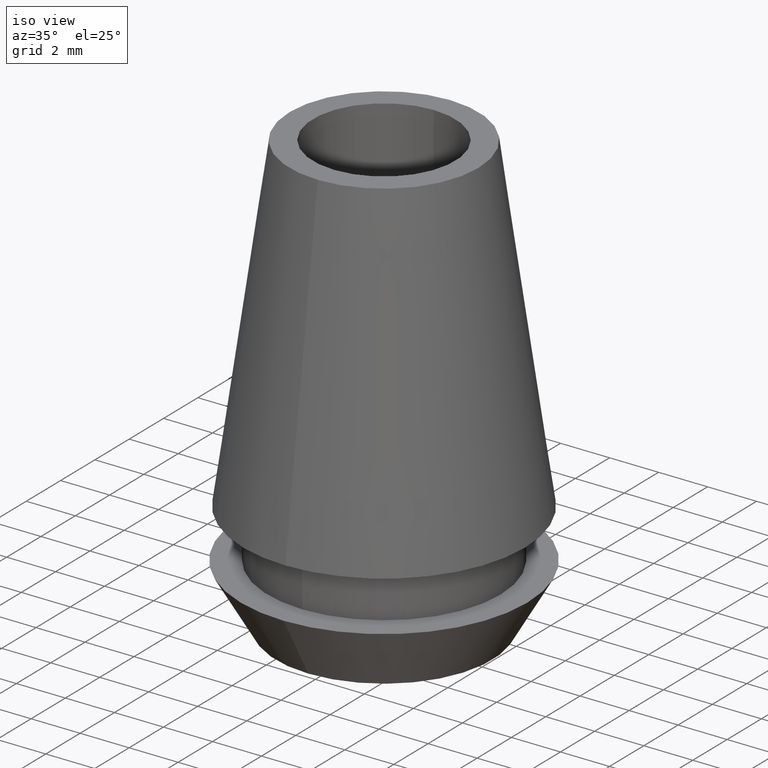
[diagram: clean part render]
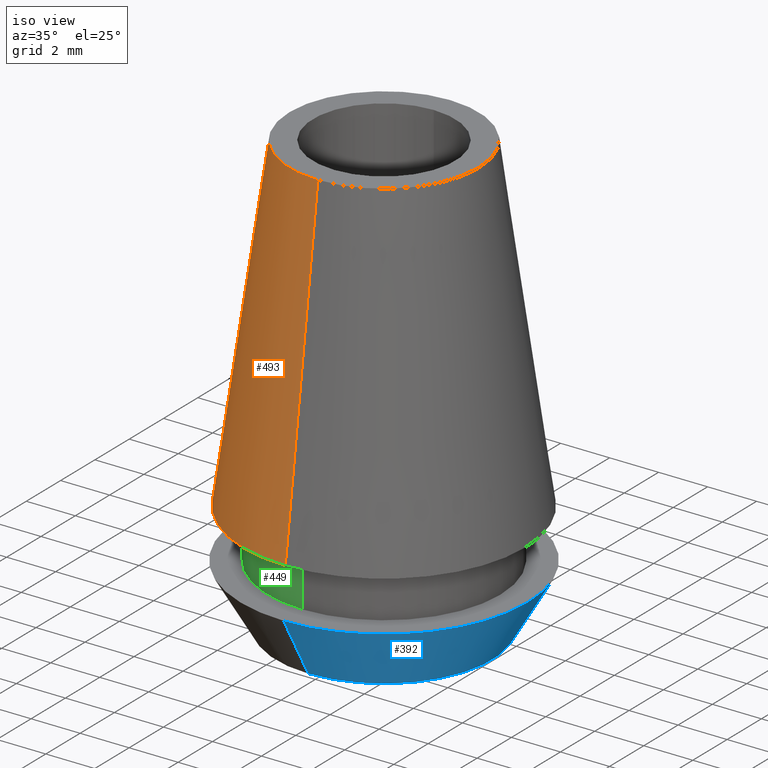
[diagram: same view with three faces highlighted in distinct colors, each labeled with its STEP entity id]
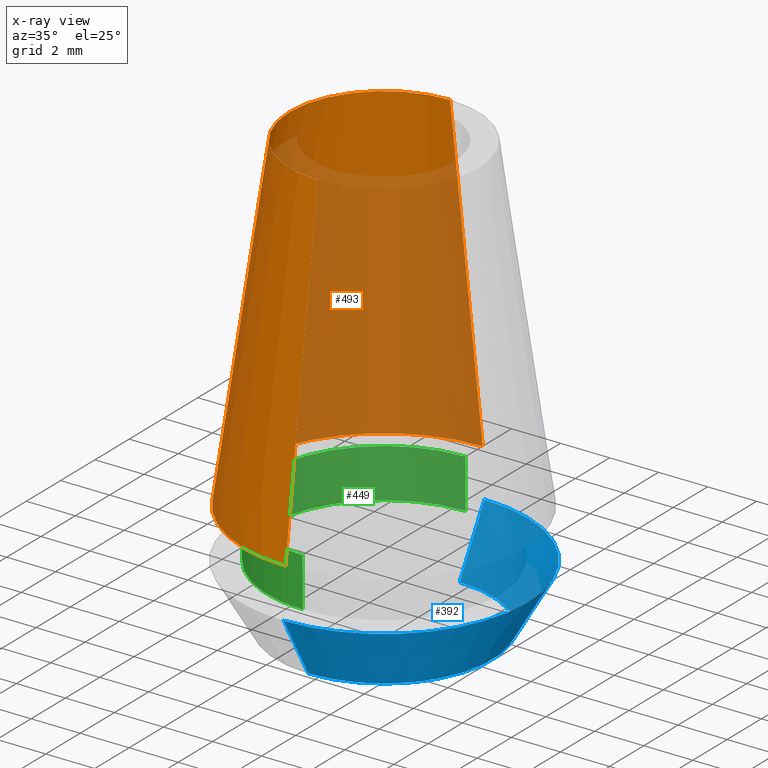
[diagram: x-ray of the same camera — body ghosted, the three highlighted faces saturated]
A machine part, iso view with three faces highlighted in distinct colors.
The next image is the same camera in x-ray (body ghosted, the three faces saturated) — at least one of them is partly hidden behind the body in this view.
Their STEP definitions:

[orange] entity #493 — the highlighted conical surface has half-angle 8 deg.
#178=CARTESIAN_POINT('',(0.E0,1.285266815705E-14,-1.35E1));
#179=DIRECTION('',(0.E0,0.E0,1.E0));
#180=DIRECTION('',(0.E0,1.E0,0.E0));
#181=AXIS2_PLACEMENT_3D('',#178,#179,#180);
#202=DIRECTION('',(0.E0,1.391731009601E-1,-9.902680687416E-1));
#203=VECTOR('',#202,1.363267222900E1);
#204=CARTESIAN_POINT('',(0.E0,3.855672233982E0,0.E0));
#205=LINE('',#204,#203);
#209=DIRECTION('',(0.E0,-1.391731009601E-1,-9.902680687416E-1));
#210=VECTOR('',#209,1.363267222900E1);
#211=CARTESIAN_POINT('',(0.E0,-3.855672233982E0,0.E0));
#212=LINE('',#211,#210);
#216=CARTESIAN_POINT('',(0.E0,1.285266815705E-14,2.486899575160E-14));
#217=DIRECTION('',(0.E0,0.E0,-1.E0));
#218=DIRECTION('',(0.E0,-1.E0,0.E0));
#219=AXIS2_PLACEMENT_3D('',#216,#217,#218);
#280=CARTESIAN_POINT('',(0.E0,-5.752973502464E0,-1.35E1));
#281=CARTESIAN_POINT('',(0.E0,5.752973502464E0,-1.35E1));
#282=VERTEX_POINT('',#280);
#283=VERTEX_POINT('',#281);
#284=CARTESIAN_POINT('',(0.E0,3.855672233982E0,0.E0));
#285=VERTEX_POINT('',#284);
#286=CARTESIAN_POINT('',(0.E0,-3.855672233982E0,0.E0));
#287=VERTEX_POINT('',#286);
#481=CARTESIAN_POINT('',(0.E0,1.285266815705E-14,-6.75E0));
#482=DIRECTION('',(0.E0,0.E0,-1.E0));
#483=DIRECTION('',(0.E0,-1.E0,0.E0));
#484=AXIS2_PLACEMENT_3D('',#481,#482,#483);
#485=CONICAL_SURFACE('',#484,4.804322868223E0,8.E0);
#486=ORIENTED_EDGE('',*,*,#471,.F.);
#488=ORIENTED_EDGE('',*,*,#487,.F.);
#489=ORIENTED_EDGE('',*,*,#474,.T.);
#490=ORIENTED_EDGE('',*,*,#457,.F.);
#491=EDGE_LOOP('',(#486,#488,#489,#490));
#492=FACE_OUTER_BOUND('',#491,.F.);
#182=CIRCLE('',#181,5.752973502464E0);
#220=CIRCLE('',#219,3.855672233982E0);
#457=EDGE_CURVE('',#283,#282,#182,.T.);
#471=EDGE_CURVE('',#285,#283,#205,.T.);
#474=EDGE_CURVE('',#287,#282,#212,.T.);
#487=EDGE_CURVE('',#287,#285,#220,.T.);
#493=ADVANCED_FACE('',(#492),#485,.T.);

[blue] entity #392 — the highlighted conical surface has half-angle 30 deg.
#78=CARTESIAN_POINT('',(0.E0,1.162802135790E-14,-1.8E1));
#79=DIRECTION('',(0.E0,0.E0,1.E0));
#80=DIRECTION('',(0.E0,-1.E0,0.E0));
#81=AXIS2_PLACEMENT_3D('',#78,#79,#80);
#110=DIRECTION('',(0.E0,-5.E-1,-8.660254037844E-1));
#111=VECTOR('',#110,2.886751345948E0);
#112=CARTESIAN_POINT('',(0.E0,5.85E0,-1.55E1));
#113=LINE('',#112,#111);
#117=DIRECTION('',(0.E0,5.E-1,-8.660254037844E-1));
#118=VECTOR('',#117,2.886751345948E0);
#119=CARTESIAN_POINT('',(0.E0,-5.85E0,-1.55E1));
#120=LINE('',#119,#118);
#132=CARTESIAN_POINT('',(0.E0,1.162802135790E-14,-1.55E1));
#133=DIRECTION('',(0.E0,0.E0,-1.E0));
#134=DIRECTION('',(0.E0,1.E0,0.E0));
#135=AXIS2_PLACEMENT_3D('',#132,#133,#134);
#264=CARTESIAN_POINT('',(0.E0,-4.406624327026E0,-1.8E1));
#265=CARTESIAN_POINT('',(0.E0,4.406624327026E0,-1.8E1));
#266=VERTEX_POINT('',#264);
#267=VERTEX_POINT('',#265);
#268=CARTESIAN_POINT('',(0.E0,5.85E0,-1.55E1));
#269=VERTEX_POINT('',#268);
#270=CARTESIAN_POINT('',(0.E0,-5.85E0,-1.55E1));
#271=VERTEX_POINT('',#270);
#378=CARTESIAN_POINT('',(0.E0,1.162802135790E-14,-1.675E1));
#379=DIRECTION('',(0.E0,0.E0,1.E0));
#380=DIRECTION('',(0.E0,1.E0,0.E0));
#381=AXIS2_PLACEMENT_3D('',#378,#379,#380);
#382=CONICAL_SURFACE('',#381,5.128312163513E0,3.E1);
#384=ORIENTED_EDGE('',*,*,#383,.T.);
#385=ORIENTED_EDGE('',*,*,#367,.F.);
#387=ORIENTED_EDGE('',*,*,#386,.F.);
#389=ORIENTED_EDGE('',*,*,#388,.F.);
#390=EDGE_LOOP('',(#384,#385,#387,#389));
#391=FACE_OUTER_BOUND('',#390,.F.);
#82=CIRCLE('',#81,4.406624327026E0);
#136=CIRCLE('',#135,5.85E0);
#367=EDGE_CURVE('',#266,#267,#82,.T.);
#383=EDGE_CURVE('',#269,#267,#113,.T.);
#386=EDGE_CURVE('',#271,#266,#120,.T.);
#388=EDGE_CURVE('',#269,#271,#136,.T.);
#392=ADVANCED_FACE('',(#391),#382,.T.);

[green] entity #449 — the highlighted cylindrical surface (partial cylindrical patch) has radius 4.75 mm, axis along (0, 0, -1).
#148=CARTESIAN_POINT('',(0.E0,1.378952295840E-14,-1.55E1));
#149=DIRECTION('',(0.E0,0.E0,1.E0));
#150=DIRECTION('',(0.E0,1.E0,0.E0));
#151=AXIS2_PLACEMENT_3D('',#148,#149,#150);
#156=DIRECTION('',(0.E0,0.E0,-1.E0));
#157=VECTOR('',#156,2.E0);
#158=CARTESIAN_POINT('',(0.E0,4.75E0,-1.35E1));
#159=LINE('',#158,#157);
#163=DIRECTION('',(0.E0,0.E0,-1.E0));
#164=VECTOR('',#163,2.E0);
#165=CARTESIAN_POINT('',(0.E0,-4.75E0,-1.35E1));
#166=LINE('',#165,#164);
#186=CARTESIAN_POINT('',(0.E0,1.378952295840E-14,-1.35E1));
#187=DIRECTION('',(0.E0,0.E0,-1.E0));
#188=DIRECTION('',(0.E0,-1.E0,0.E0));
#189=AXIS2_PLACEMENT_3D('',#186,#187,#188);
#272=CARTESIAN_POINT('',(0.E0,-4.75E0,-1.55E1));
#273=CARTESIAN_POINT('',(0.E0,4.75E0,-1.55E1));
#274=VERTEX_POINT('',#272);
#275=VERTEX_POINT('',#273);
#276=CARTESIAN_POINT('',(0.E0,4.75E0,-1.35E1));
#277=VERTEX_POINT('',#276);
#278=CARTESIAN_POINT('',(0.E0,-4.75E0,-1.35E1));
#279=VERTEX_POINT('',#278);
#437=CARTESIAN_POINT('',(0.E0,1.378952295840E-14,9.E-1));
#438=DIRECTION('',(0.E0,0.E0,-1.E0));
#439=DIRECTION('',(0.E0,-1.E0,0.E0));
#440=AXIS2_PLACEMENT_3D('',#437,#438,#439);
#441=CYLINDRICAL_SURFACE('',#440,4.75E0);
#442=ORIENTED_EDGE('',*,*,#427,.F.);
#444=ORIENTED_EDGE('',*,*,#443,.F.);
#445=ORIENTED_EDGE('',*,*,#430,.T.);
#446=ORIENTED_EDGE('',*,*,#417,.F.);
#447=EDGE_LOOP('',(#442,#444,#445,#446));
#448=FACE_OUTER_BOUND('',#447,.F.);
#152=CIRCLE('',#151,4.75E0);
#190=CIRCLE('',#189,4.75E0);
#417=EDGE_CURVE('',#275,#274,#152,.T.);
#427=EDGE_CURVE('',#277,#275,#159,.T.);
#430=EDGE_CURVE('',#279,#274,#166,.T.);
#443=EDGE_CURVE('',#279,#277,#190,.T.);
#449=ADVANCED_FACE('',(#448),#441,.T.);